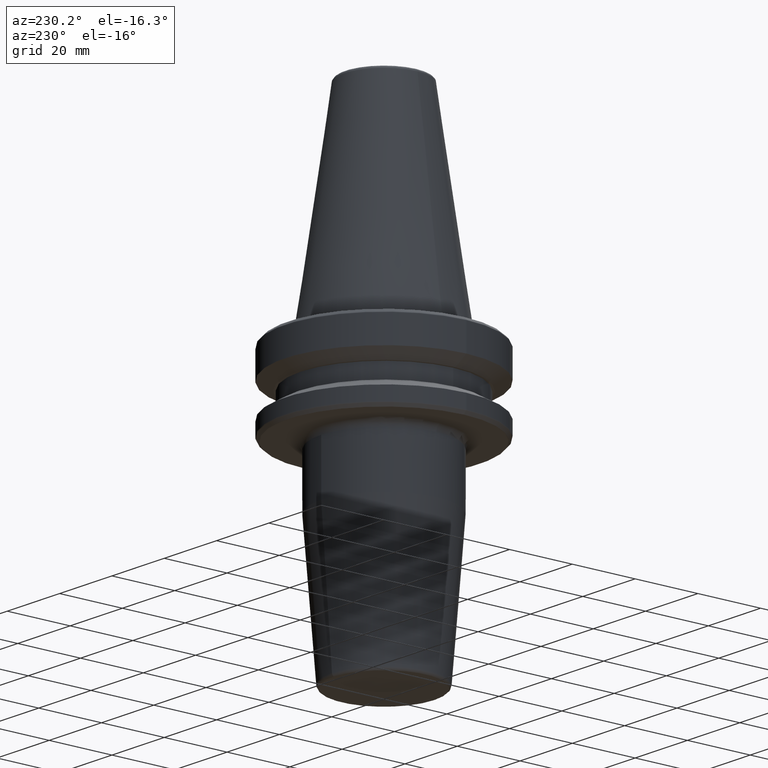
[diagram: clean part render]
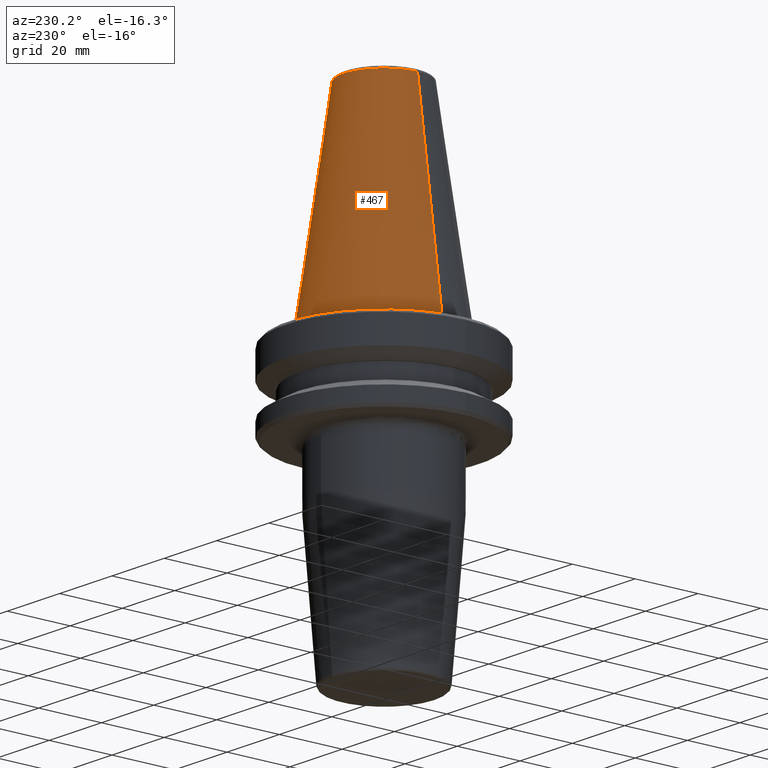
[diagram: same view with one face highlighted and labeled with its STEP entity id]
A machine part, auxiliary view. The second image highlights one B-rep face of the part: STEP entity #467.
In plain terms, the highlighted conical surface has half-angle 8.297 deg.
Its self-contained STEP definition (entity closure, byte-faithful):
#11 = DIRECTION ( 'NONE',  ( -0.0000000000000000000, -0.0000000000000000000, 1.000000000000000000 ) ) ;
#42 = CARTESIAN_POINT ( 'NONE',  ( 22.22500000000000500, 0.0000000000000000000, 0.0000000000000000000 ) ) ;
#51 = DIRECTION ( 'NONE',  ( 1.000000000000000000, 0.0000000000000000000, 0.0000000000000000000 ) ) ;
#57 = DIRECTION ( 'NONE',  ( 1.000000000000000000, 0.0000000000000000000, 0.0000000000000000000 ) ) ;
#134 = VERTEX_POINT ( 'NONE', #647 ) ;
#153 = CARTESIAN_POINT ( 'NONE',  ( 0.0000000000000000000, 0.0000000000000000000, 64.54430822726730800 ) ) ;
#232 = EDGE_CURVE ( 'NONE', #946, #562, #779, .T. ) ;
#237 = CARTESIAN_POINT ( 'NONE',  ( 12.81219950706224800, 1.569041911636107800E-015, 64.54430822726730800 ) ) ;
#254 = LINE ( 'NONE', #1030, #519 ) ;
#271 = EDGE_CURVE ( 'NONE', #1158, #134, #412, .T. ) ;
#288 = CARTESIAN_POINT ( 'NONE',  ( 0.0000000000000000000, 0.0000000000000000000, 64.54430822726730800 ) ) ;
#331 = FACE_OUTER_BOUND ( 'NONE', #644, .T. ) ;
#405 = ORIENTED_EDGE ( 'NONE', *, *, #271, .F. ) ;
#412 = CIRCLE ( 'NONE', #1140, 12.81219950706224800 ) ;
#437 = DIRECTION ( 'NONE',  ( -0.1443082272673071000, 0.0000000000000000000, -0.9895327864921743500 ) ) ;
#467 = ADVANCED_FACE ( 'NONE', ( #331 ), #1058, .T. ) ;
#519 = VECTOR ( 'NONE', #437, 1000.000000000000000 ) ;
#562 = VERTEX_POINT ( 'NONE', #785 ) ;
#613 = CARTESIAN_POINT ( 'NONE',  ( 0.0000000000000000000, 0.0000000000000000000, 0.0000000000000000000 ) ) ;
#622 = VECTOR ( 'NONE', #1226, 1000.000000000000000 ) ;
#644 = EDGE_LOOP ( 'NONE', ( #405, #868, #866, #799 ) ) ;
#647 = CARTESIAN_POINT ( 'NONE',  ( -12.81219950706224800, 0.0000000000000000000, 64.54430822726730800 ) ) ;
#750 = DIRECTION ( 'NONE',  ( -0.0000000000000000000, -0.0000000000000000000, 1.000000000000000000 ) ) ;
#779 = CIRCLE ( 'NONE', #881, 22.22500000000000500 ) ;
#785 = CARTESIAN_POINT ( 'NONE',  ( -22.22500000000000500, 2.721777511104993200E-015, 0.0000000000000000000 ) ) ;
#799 = ORIENTED_EDGE ( 'NONE', *, *, #875, .F. ) ;
#866 = ORIENTED_EDGE ( 'NONE', *, *, #232, .T. ) ;
#868 = ORIENTED_EDGE ( 'NONE', *, *, #895, .T. ) ;
#875 = EDGE_CURVE ( 'NONE', #134, #562, #254, .T. ) ;
#876 = LINE ( 'NONE', #237, #622 ) ;
#881 = AXIS2_PLACEMENT_3D ( 'NONE', #613, #11, #57 ) ;
#895 = EDGE_CURVE ( 'NONE', #1158, #946, #876, .T. ) ;
#946 = VERTEX_POINT ( 'NONE', #42 ) ;
#1030 = CARTESIAN_POINT ( 'NONE',  ( -12.81219950706224800, 0.0000000000000000000, 64.54430822726730800 ) ) ;
#1058 = CONICAL_SURFACE ( 'NONE', #1117, 12.81219950706224800, 0.1448138465474191100 ) ;
#1080 = DIRECTION ( 'NONE',  ( -1.000000000000000000, 0.0000000000000000000, 0.0000000000000000000 ) ) ;
#1117 = AXIS2_PLACEMENT_3D ( 'NONE', #288, #1185, #1080 ) ;
#1140 = AXIS2_PLACEMENT_3D ( 'NONE', #153, #750, #51 ) ;
#1158 = VERTEX_POINT ( 'NONE', #1165 ) ;
#1165 = CARTESIAN_POINT ( 'NONE',  ( 12.81219950706224800, 2.145409711370550300E-015, 64.54430822726730800 ) ) ;
#1185 = DIRECTION ( 'NONE',  ( 0.0000000000000000000, 0.0000000000000000000, -1.000000000000000000 ) ) ;
#1226 = DIRECTION ( 'NONE',  ( 0.1443082272673071000, 1.767266086135364600E-017, -0.9895327864921743500 ) ) ;